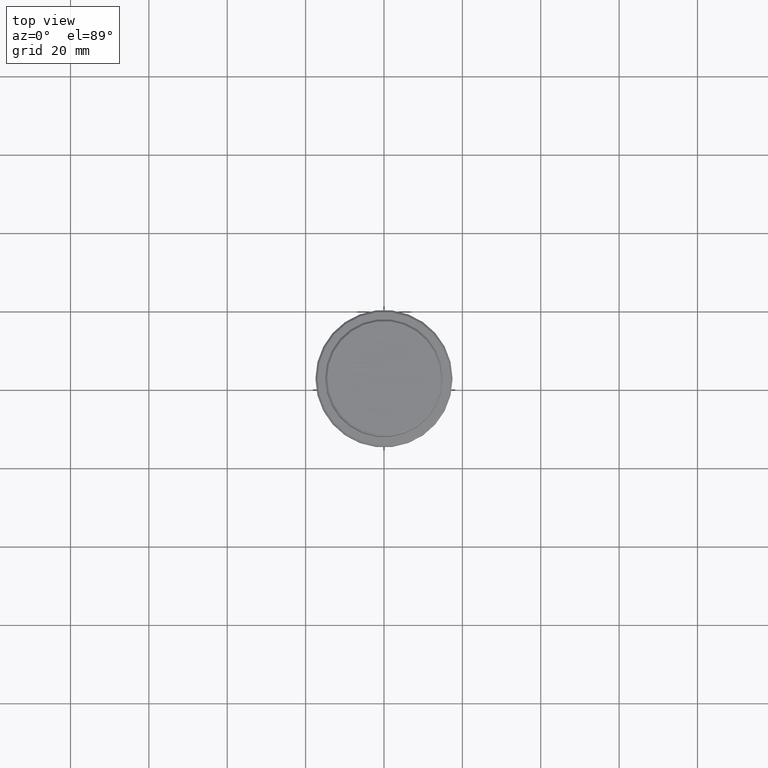
[diagram: clean part render]
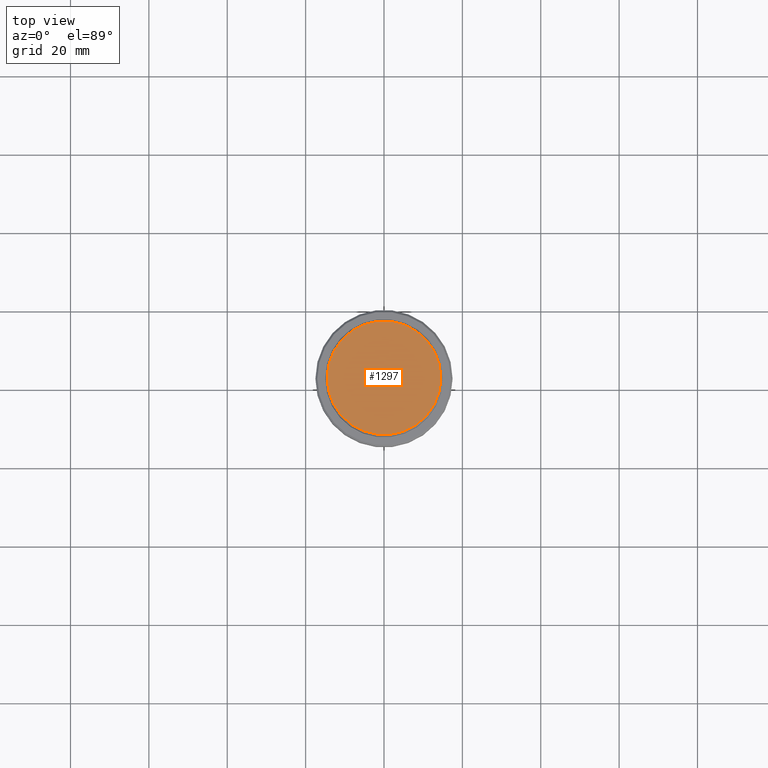
[diagram: same view with one face highlighted and labeled with its STEP entity id]
A machine part, top view. The second image highlights one B-rep face of the part: STEP entity #1297.
In plain terms, the highlighted planar face has unit normal (0, -0, 1).
Its self-contained STEP definition (entity closure, byte-faithful):
#192 = AXIS2_PLACEMENT_3D ( 'NONE', #247, #571, #993 ) ;
#247 = CARTESIAN_POINT ( 'NONE',  ( 0.000000000000000000, 0.000000000000000000, 0.000000000000000000 ) ) ;
#254 = AXIS2_PLACEMENT_3D ( 'NONE', #930, #732, #1376 ) ;
#356 = ORIENTED_EDGE ( 'NONE', *, *, #1200, .T. ) ;
#363 = VERTEX_POINT ( 'NONE', #1366 ) ;
#381 = DIRECTION ( 'NONE',  ( 1.000000000000000000, 0.000000000000000000, 0.000000000000000000 ) ) ;
#482 = FACE_OUTER_BOUND ( 'NONE', #630, .T. ) ;
#571 = DIRECTION ( 'NONE',  ( -0.000000000000000000, -0.000000000000000000, 1.000000000000000000 ) ) ;
#593 = VERTEX_POINT ( 'NONE', #1077 ) ;
#630 = EDGE_LOOP ( 'NONE', ( #1032, #356 ) ) ;
#732 = DIRECTION ( 'NONE',  ( 0.000000000000000000, -0.000000000000000000, 1.000000000000000000 ) ) ;
#909 = EDGE_CURVE ( 'NONE', #363, #593, #1231, .T. ) ;
#930 = CARTESIAN_POINT ( 'NONE',  ( 0.000000000000000000, 0.000000000000000000, 0.000000000000000000 ) ) ;
#937 = AXIS2_PLACEMENT_3D ( 'NONE', #1361, #1033, #381 ) ;
#993 = DIRECTION ( 'NONE',  ( 1.000000000000000000, 0.000000000000000000, 0.000000000000000000 ) ) ;
#1032 = ORIENTED_EDGE ( 'NONE', *, *, #909, .T. ) ;
#1033 = DIRECTION ( 'NONE',  ( -0.000000000000000000, -0.000000000000000000, 1.000000000000000000 ) ) ;
#1077 = CARTESIAN_POINT ( 'NONE',  ( 14.50000000000003908, 1.806354028742348168E-15, 0.000000000000000000 ) ) ;
#1147 = PLANE ( 'NONE',  #254 ) ;
#1200 = EDGE_CURVE ( 'NONE', #593, #363, #1255, .T. ) ;
#1231 = CIRCLE ( 'NONE', #937, 14.50000000000003908 ) ;
#1255 = CIRCLE ( 'NONE', #192, 14.50000000000003908 ) ;
#1297 = ADVANCED_FACE ( 'NONE', ( #482 ), #1147, .T. ) ;
#1361 = CARTESIAN_POINT ( 'NONE',  ( 0.000000000000000000, 0.000000000000000000, 0.000000000000000000 ) ) ;
#1366 = CARTESIAN_POINT ( 'NONE',  ( -14.50000000000003908, 0.000000000000000000, 0.000000000000000000 ) ) ;
#1376 = DIRECTION ( 'NONE',  ( 1.000000000000000000, 0.000000000000000000, 0.000000000000000000 ) ) ;